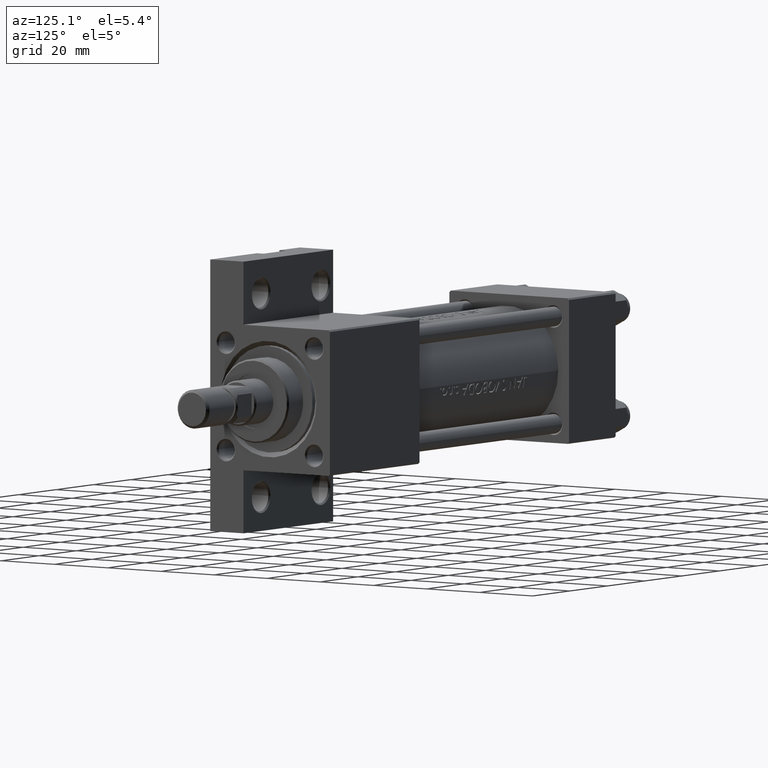
[diagram: clean part render]
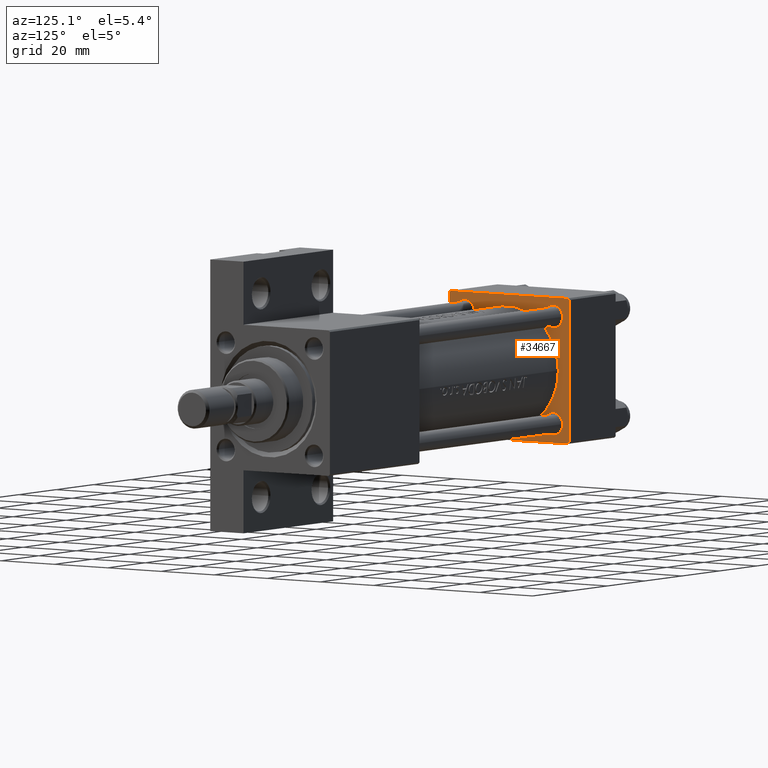
[diagram: same view with one face highlighted and labeled with its STEP entity id]
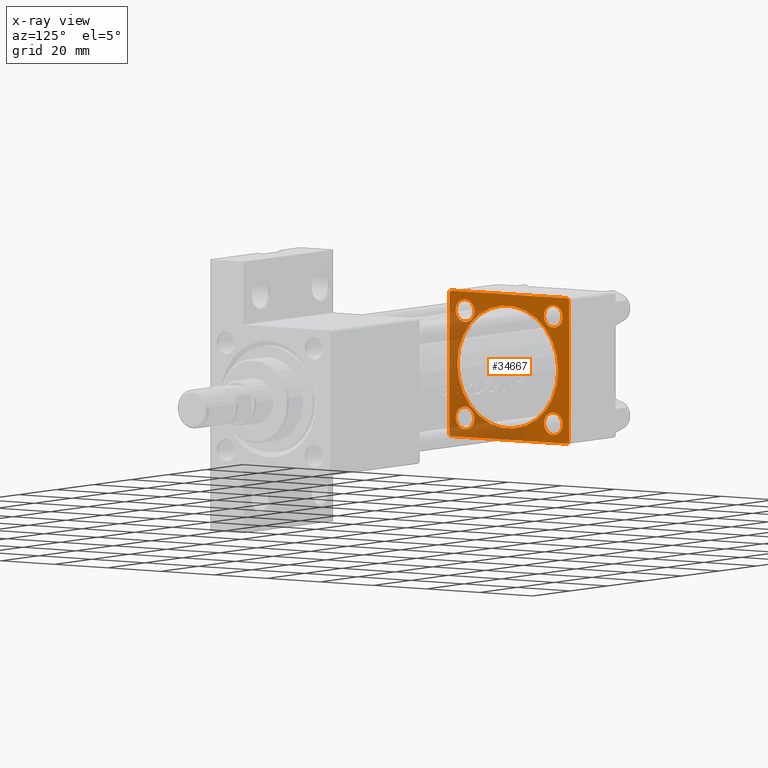
[diagram: x-ray of the same camera — body ghosted, the highlighted face saturated]
A machine part, auxiliary view. The second image highlights one B-rep face of the part: STEP entity #34667.
The next image is the same camera in x-ray: the body ghosted, the highlighted face saturated — about 37% of this face is hidden behind the body in this view.
In plain terms, the highlighted planar face has unit normal (-1, 0, -0).
Its self-contained STEP definition (entity closure, byte-faithful):
#756 = ORIENTED_EDGE ( 'NONE', *, *, #32061, .T. ) ;
#847 = CARTESIAN_POINT ( 'NONE',  ( 25.00000000000000000, 16.59999999999999787, -16.60000000000000497 ) ) ;
#948 = ORIENTED_EDGE ( 'NONE', *, *, #19557, .F. ) ;
#1141 = EDGE_CURVE ( 'NONE', #1850, #19424, #40189, .T. ) ;
#1677 = CARTESIAN_POINT ( 'NONE',  ( 25.00000000000000000, -21.99999999999997868, 22.50000000000000000 ) ) ;
#1792 = EDGE_LOOP ( 'NONE', ( #10098, #22684 ) ) ;
#1850 = VERTEX_POINT ( 'NONE', #6948 ) ;
#2037 = DIRECTION ( 'NONE',  ( 1.000000000000000000, -0.000000000000000000, 0.000000000000000000 ) ) ;
#2519 = ORIENTED_EDGE ( 'NONE', *, *, #44586, .T. ) ;
#2798 = FACE_BOUND ( 'NONE', #6074, .T. ) ;
#3480 = LINE ( 'NONE', #37335, #28096 ) ;
#4249 = CARTESIAN_POINT ( 'NONE',  ( 25.00000000000000000, -22.50000000000000000, 22.00000000000000000 ) ) ;
#4306 = CIRCLE ( 'NONE', #26082, 3.499999999999992895 ) ;
#4633 = EDGE_CURVE ( 'NONE', #12908, #45583, #5894, .T. ) ;
#5116 = EDGE_CURVE ( 'NONE', #14312, #29409, #20458, .T. ) ;
#5894 = LINE ( 'NONE', #25368, #46134 ) ;
#6074 = EDGE_LOOP ( 'NONE', ( #25817, #10851 ) ) ;
#6485 = VERTEX_POINT ( 'NONE', #26704 ) ;
#6486 = EDGE_CURVE ( 'NONE', #21715, #6485, #25034, .T. ) ;
#6566 = DIRECTION ( 'NONE',  ( -1.000000000000000000, 0.000000000000000000, -0.000000000000000000 ) ) ;
#6948 = CARTESIAN_POINT ( 'NONE',  ( 24.99999999999999289, 6.123233995736727825E-17, 18.50000000000000355 ) ) ;
#7028 = CARTESIAN_POINT ( 'NONE',  ( 25.00000000000000000, 21.99999999999999289, 22.50000000000000355 ) ) ;
#8872 = EDGE_CURVE ( 'NONE', #30640, #10243, #33357, .T. ) ;
#8995 = EDGE_CURVE ( 'NONE', #37094, #22748, #33710, .T. ) ;
#9103 = DIRECTION ( 'NONE',  ( 0.000000000000000000, 0.000000000000000000, 1.000000000000000000 ) ) ;
#9704 = EDGE_CURVE ( 'NONE', #28855, #37582, #36839, .T. ) ;
#9822 = ORIENTED_EDGE ( 'NONE', *, *, #8872, .T. ) ;
#9864 = EDGE_CURVE ( 'NONE', #41220, #45583, #33679, .T. ) ;
#10098 = ORIENTED_EDGE ( 'NONE', *, *, #1141, .F. ) ;
#10243 = VERTEX_POINT ( 'NONE', #40551 ) ;
#10298 = LINE ( 'NONE', #18090, #20722 ) ;
#10691 = DIRECTION ( 'NONE',  ( 0.000000000000000000, 0.000000000000000000, 1.000000000000000000 ) ) ;
#10851 = ORIENTED_EDGE ( 'NONE', *, *, #5116, .T. ) ;
#11162 = VECTOR ( 'NONE', #22698, 1000.000000000000000 ) ;
#12180 = ORIENTED_EDGE ( 'NONE', *, *, #4633, .T. ) ;
#12382 = VERTEX_POINT ( 'NONE', #4249 ) ;
#12584 = AXIS2_PLACEMENT_3D ( 'NONE', #847, #42729, #20311 ) ;
#12798 = CARTESIAN_POINT ( 'NONE',  ( 25.00000000000000000, 22.50000000000000000, -21.99999999999996803 ) ) ;
#12908 = VERTEX_POINT ( 'NONE', #28135 ) ;
#13169 = ORIENTED_EDGE ( 'NONE', *, *, #30684, .T. ) ;
#13226 = DIRECTION ( 'NONE',  ( -1.000000000000000000, 0.000000000000000000, -0.000000000000000000 ) ) ;
#13381 = EDGE_CURVE ( 'NONE', #6485, #21715, #26091, .T. ) ;
#13507 = DIRECTION ( 'NONE',  ( -0.000000000000000000, 0.000000000000000000, 1.000000000000000000 ) ) ;
#14209 = AXIS2_PLACEMENT_3D ( 'NONE', #39803, #24951, #13507 ) ;
#14312 = VERTEX_POINT ( 'NONE', #28277 ) ;
#14642 = ORIENTED_EDGE ( 'NONE', *, *, #13381, .T. ) ;
#15040 = DIRECTION ( 'NONE',  ( 0.000000000000000000, -1.000000000000000000, -7.709882115452476934E-17 ) ) ;
#15041 = DIRECTION ( 'NONE',  ( -1.000000000000000000, 0.000000000000000000, -0.000000000000000000 ) ) ;
#15149 = CARTESIAN_POINT ( 'NONE',  ( 25.00000000000000000, 22.50000000000000000, -22.49999999999999645 ) ) ;
#15837 = CARTESIAN_POINT ( 'NONE',  ( 25.00000000000000000, 21.99999999999999289, -22.49999999999999645 ) ) ;
#15887 = CARTESIAN_POINT ( 'NONE',  ( 25.00000000000000000, 22.50000000000000000, -21.99999999999998224 ) ) ;
#16060 = AXIS2_PLACEMENT_3D ( 'NONE', #31991, #2037, #43194 ) ;
#16647 = CARTESIAN_POINT ( 'NONE',  ( 25.00000000000000000, -16.59999999999999076, -16.60000000000000853 ) ) ;
#17050 = CARTESIAN_POINT ( 'NONE',  ( 25.00000000000000000, 16.59999999999999787, 16.60000000000000497 ) ) ;
#17154 = PLANE ( 'NONE',  #14209 ) ;
#17199 = ORIENTED_EDGE ( 'NONE', *, *, #18133, .T. ) ;
#17330 = DIRECTION ( 'NONE',  ( 0.000000000000000000, 0.7071067811865426878, -0.7071067811865524577 ) ) ;
#17516 = DIRECTION ( 'NONE',  ( -1.000000000000000000, 0.000000000000000000, -0.000000000000000000 ) ) ;
#18090 = CARTESIAN_POINT ( 'NONE',  ( 25.00000000000000000, -22.50000000000000000, 22.00000000000000000 ) ) ;
#18133 = EDGE_CURVE ( 'NONE', #41220, #29458, #41234, .T. ) ;
#18315 = CARTESIAN_POINT ( 'NONE',  ( 25.00000000000000000, 22.50000000000000000, 21.99999999999999645 ) ) ;
#18912 = AXIS2_PLACEMENT_3D ( 'NONE', #37252, #17516, #28733 ) ;
#18939 = LINE ( 'NONE', #37708, #44596 ) ;
#19037 = DIRECTION ( 'NONE',  ( 0.000000000000000000, 0.000000000000000000, 1.000000000000000000 ) ) ;
#19424 = VERTEX_POINT ( 'NONE', #32628 ) ;
#19557 = EDGE_CURVE ( 'NONE', #30640, #29458, #26498, .T. ) ;
#19629 = DIRECTION ( 'NONE',  ( 0.000000000000000000, 0.000000000000000000, 1.000000000000000000 ) ) ;
#20119 = ORIENTED_EDGE ( 'NONE', *, *, #6486, .T. ) ;
#20311 = DIRECTION ( 'NONE',  ( 0.000000000000000000, 0.000000000000000000, 1.000000000000000000 ) ) ;
#20458 = CIRCLE ( 'NONE', #36810, 3.499999999999992895 ) ;
#20722 = VECTOR ( 'NONE', #32015, 999.9999999999998863 ) ;
#21715 = VERTEX_POINT ( 'NONE', #27325 ) ;
#22044 = CIRCLE ( 'NONE', #34501, 19.00000000000000000 ) ;
#22596 = DIRECTION ( 'NONE',  ( 0.000000000000000000, 0.000000000000000000, 1.000000000000000000 ) ) ;
#22652 = CARTESIAN_POINT ( 'NONE',  ( 25.00000000000000000, -16.59999999999999076, -13.10000000000001741 ) ) ;
#22684 = ORIENTED_EDGE ( 'NONE', *, *, #35807, .F. ) ;
#22698 = DIRECTION ( 'NONE',  ( 0.000000000000000000, -1.000000000000000000, -2.312964634635742957E-16 ) ) ;
#22747 = EDGE_CURVE ( 'NONE', #12382, #12908, #3480, .T. ) ;
#22748 = VERTEX_POINT ( 'NONE', #33438 ) ;
#23644 = EDGE_LOOP ( 'NONE', ( #42294, #17199, #948, #9822, #756, #2519, #31579, #12180 ) ) ;
#23663 = CARTESIAN_POINT ( 'NONE',  ( 24.99999999999999289, 6.123233995736727825E-17, -0.4999999999999970024 ) ) ;
#24094 = EDGE_CURVE ( 'NONE', #22748, #37094, #35922, .T. ) ;
#24339 = VECTOR ( 'NONE', #48217, 1000.000000000000114 ) ;
#24473 = FACE_BOUND ( 'NONE', #1792, .T. ) ;
#24951 = DIRECTION ( 'NONE',  ( -1.000000000000000000, 0.000000000000000000, -0.000000000000000000 ) ) ;
#25034 = CIRCLE ( 'NONE', #28174, 3.499999999999975131 ) ;
#25196 = FACE_BOUND ( 'NONE', #25633, .T. ) ;
#25368 = CARTESIAN_POINT ( 'NONE',  ( 25.00000000000000000, -21.99999999999998579, -22.50000000000000711 ) ) ;
#25633 = EDGE_LOOP ( 'NONE', ( #36428, #28480 ) ) ;
#25792 = CARTESIAN_POINT ( 'NONE',  ( 25.00000000000000000, -16.59999999999999076, 16.60000000000000853 ) ) ;
#25817 = ORIENTED_EDGE ( 'NONE', *, *, #40440, .T. ) ;
#26082 = AXIS2_PLACEMENT_3D ( 'NONE', #29934, #15041, #22596 ) ;
#26091 = CIRCLE ( 'NONE', #43199, 3.499999999999975131 ) ;
#26128 = DIRECTION ( 'NONE',  ( 0.000000000000000000, 0.000000000000000000, -1.000000000000000000 ) ) ;
#26498 = LINE ( 'NONE', #30413, #46647 ) ;
#26704 = CARTESIAN_POINT ( 'NONE',  ( 25.00000000000000000, 16.59999999999999787, 13.10000000000002807 ) ) ;
#26743 = DIRECTION ( 'NONE',  ( 0.000000000000000000, 0.000000000000000000, -1.000000000000000000 ) ) ;
#26946 = EDGE_LOOP ( 'NONE', ( #14642, #20119 ) ) ;
#26953 = DIRECTION ( 'NONE',  ( -1.000000000000000000, 0.000000000000000000, -0.000000000000000000 ) ) ;
#27325 = CARTESIAN_POINT ( 'NONE',  ( 25.00000000000000000, 16.59999999999999787, 20.09999999999998010 ) ) ;
#27528 = AXIS2_PLACEMENT_3D ( 'NONE', #16647, #13226, #9103 ) ;
#28028 = DIRECTION ( 'NONE',  ( 0.000000000000000000, 0.000000000000000000, 1.000000000000000000 ) ) ;
#28096 = VECTOR ( 'NONE', #26128, 1000.000000000000000 ) ;
#28135 = CARTESIAN_POINT ( 'NONE',  ( 25.00000000000000000, -22.50000000000000000, -21.99999999999997158 ) ) ;
#28174 = AXIS2_PLACEMENT_3D ( 'NONE', #30379, #26953, #19629 ) ;
#28277 = CARTESIAN_POINT ( 'NONE',  ( 25.00000000000000000, -16.59999999999999076, 20.10000000000000142 ) ) ;
#28480 = ORIENTED_EDGE ( 'NONE', *, *, #8995, .T. ) ;
#28733 = DIRECTION ( 'NONE',  ( 0.000000000000000000, 0.000000000000000000, 1.000000000000000000 ) ) ;
#28855 = VERTEX_POINT ( 'NONE', #40754 ) ;
#29409 = VERTEX_POINT ( 'NONE', #33526 ) ;
#29458 = VERTEX_POINT ( 'NONE', #12798 ) ;
#29934 = CARTESIAN_POINT ( 'NONE',  ( 25.00000000000000000, -16.59999999999999076, 16.60000000000000853 ) ) ;
#30126 = EDGE_LOOP ( 'NONE', ( #30660, #13169 ) ) ;
#30379 = CARTESIAN_POINT ( 'NONE',  ( 25.00000000000000000, 16.59999999999999787, 16.60000000000000497 ) ) ;
#30413 = CARTESIAN_POINT ( 'NONE',  ( 25.00000000000000000, 22.50000000000000000, 22.50000000000000355 ) ) ;
#30640 = VERTEX_POINT ( 'NONE', #18315 ) ;
#30660 = ORIENTED_EDGE ( 'NONE', *, *, #9704, .T. ) ;
#30684 = EDGE_CURVE ( 'NONE', #37582, #28855, #44562, .T. ) ;
#31579 = ORIENTED_EDGE ( 'NONE', *, *, #22747, .T. ) ;
#31991 = CARTESIAN_POINT ( 'NONE',  ( 24.99999999999999289, 6.123233995736727825E-17, -0.4999999999999970024 ) ) ;
#32015 = DIRECTION ( 'NONE',  ( -0.000000000000000000, -0.7071067811865525687, -0.7071067811865425767 ) ) ;
#32061 = EDGE_CURVE ( 'NONE', #10243, #45275, #18939, .T. ) ;
#32530 = FACE_BOUND ( 'NONE', #26946, .T. ) ;
#32628 = CARTESIAN_POINT ( 'NONE',  ( 24.99999999999999289, 2.388061258337338150E-15, -19.49999999999999645 ) ) ;
#33191 = CARTESIAN_POINT ( 'NONE',  ( 25.00000000000000000, -16.59999999999999076, -16.60000000000000853 ) ) ;
#33357 = LINE ( 'NONE', #7028, #24339 ) ;
#33438 = CARTESIAN_POINT ( 'NONE',  ( 25.00000000000000000, 16.59999999999999787, -20.09999999999998010 ) ) ;
#33526 = CARTESIAN_POINT ( 'NONE',  ( 25.00000000000000000, -16.59999999999999076, 13.10000000000001386 ) ) ;
#33679 = LINE ( 'NONE', #15149, #11162 ) ;
#33710 = CIRCLE ( 'NONE', #18912, 3.499999999999975131 ) ;
#33914 = DIRECTION ( 'NONE',  ( -1.000000000000000000, 0.000000000000000000, -0.000000000000000000 ) ) ;
#33929 = DIRECTION ( 'NONE',  ( -0.000000000000000000, 0.7071067811865426878, 0.7071067811865524577 ) ) ;
#34501 = AXIS2_PLACEMENT_3D ( 'NONE', #23663, #41701, #19037 ) ;
#34667 = ADVANCED_FACE ( 'NONE', ( #39089, #25196, #2798, #32530, #24473, #43004 ), #17154, .F. ) ;
#34993 = CARTESIAN_POINT ( 'NONE',  ( 25.00000000000000000, -21.99999999999997158, -22.50000000000000711 ) ) ;
#35807 = EDGE_CURVE ( 'NONE', #19424, #1850, #22044, .T. ) ;
#35922 = CIRCLE ( 'NONE', #12584, 3.499999999999975131 ) ;
#36428 = ORIENTED_EDGE ( 'NONE', *, *, #24094, .T. ) ;
#36810 = AXIS2_PLACEMENT_3D ( 'NONE', #25792, #37484, #10691 ) ;
#36839 = CIRCLE ( 'NONE', #27528, 3.499999999999989342 ) ;
#37094 = VERTEX_POINT ( 'NONE', #45685 ) ;
#37252 = CARTESIAN_POINT ( 'NONE',  ( 25.00000000000000000, 16.59999999999999787, -16.60000000000000497 ) ) ;
#37323 = DIRECTION ( 'NONE',  ( 0.000000000000000000, 0.000000000000000000, 1.000000000000000000 ) ) ;
#37335 = CARTESIAN_POINT ( 'NONE',  ( 25.00000000000000000, -22.50000000000000000, 22.50000000000000000 ) ) ;
#37484 = DIRECTION ( 'NONE',  ( -1.000000000000000000, 0.000000000000000000, -0.000000000000000000 ) ) ;
#37582 = VERTEX_POINT ( 'NONE', #22652 ) ;
#37708 = CARTESIAN_POINT ( 'NONE',  ( 25.00000000000000000, 22.50000000000000000, 22.50000000000000355 ) ) ;
#39081 = AXIS2_PLACEMENT_3D ( 'NONE', #33191, #33914, #37323 ) ;
#39089 = FACE_BOUND ( 'NONE', #30126, .T. ) ;
#39803 = CARTESIAN_POINT ( 'NONE',  ( 25.00000000000000000, 0.000000000000000000, 0.000000000000000000 ) ) ;
#40189 = CIRCLE ( 'NONE', #16060, 19.00000000000000000 ) ;
#40440 = EDGE_CURVE ( 'NONE', #29409, #14312, #4306, .T. ) ;
#40551 = CARTESIAN_POINT ( 'NONE',  ( 25.00000000000000000, 21.99999999999999289, 22.50000000000000355 ) ) ;
#40754 = CARTESIAN_POINT ( 'NONE',  ( 25.00000000000000000, -16.59999999999999076, -20.09999999999999787 ) ) ;
#41220 = VERTEX_POINT ( 'NONE', #15837 ) ;
#41234 = LINE ( 'NONE', #15887, #41919 ) ;
#41701 = DIRECTION ( 'NONE',  ( 1.000000000000000000, -0.000000000000000000, 0.000000000000000000 ) ) ;
#41919 = VECTOR ( 'NONE', #33929, 1000.000000000000000 ) ;
#42294 = ORIENTED_EDGE ( 'NONE', *, *, #9864, .F. ) ;
#42729 = DIRECTION ( 'NONE',  ( -1.000000000000000000, 0.000000000000000000, -0.000000000000000000 ) ) ;
#43004 = FACE_OUTER_BOUND ( 'NONE', #23644, .T. ) ;
#43194 = DIRECTION ( 'NONE',  ( 0.000000000000000000, 0.000000000000000000, 1.000000000000000000 ) ) ;
#43199 = AXIS2_PLACEMENT_3D ( 'NONE', #17050, #6566, #28028 ) ;
#44562 = CIRCLE ( 'NONE', #39081, 3.499999999999989342 ) ;
#44586 = EDGE_CURVE ( 'NONE', #45275, #12382, #10298, .T. ) ;
#44596 = VECTOR ( 'NONE', #15040, 1000.000000000000000 ) ;
#45275 = VERTEX_POINT ( 'NONE', #1677 ) ;
#45583 = VERTEX_POINT ( 'NONE', #34993 ) ;
#45685 = CARTESIAN_POINT ( 'NONE',  ( 25.00000000000000000, 16.59999999999999787, -13.10000000000002807 ) ) ;
#46134 = VECTOR ( 'NONE', #17330, 1000.000000000000000 ) ;
#46647 = VECTOR ( 'NONE', #26743, 1000.000000000000000 ) ;
#48217 = DIRECTION ( 'NONE',  ( 0.000000000000000000, -0.7071067811865474617, 0.7071067811865474617 ) ) ;